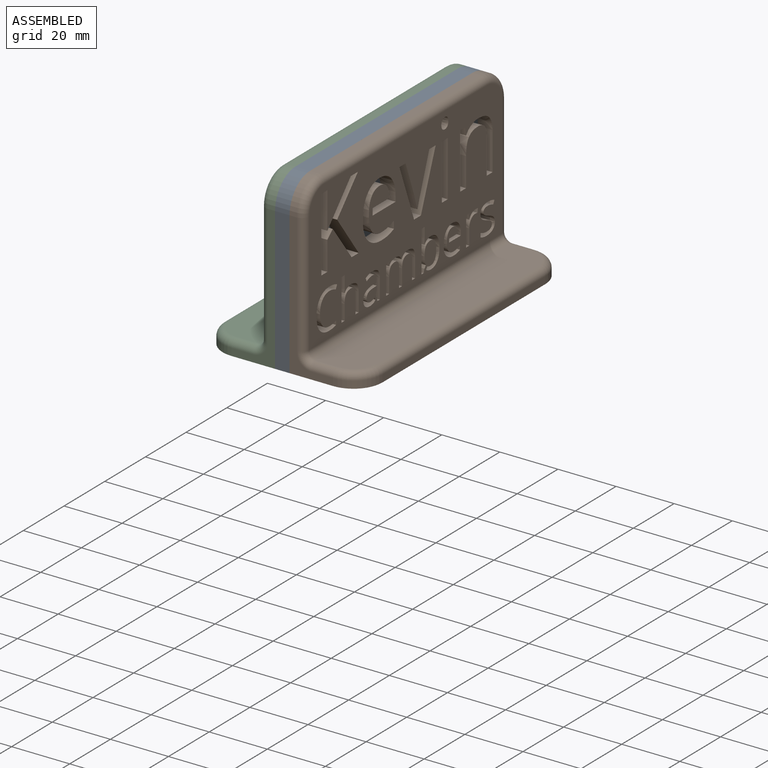
[diagram: assembled view]
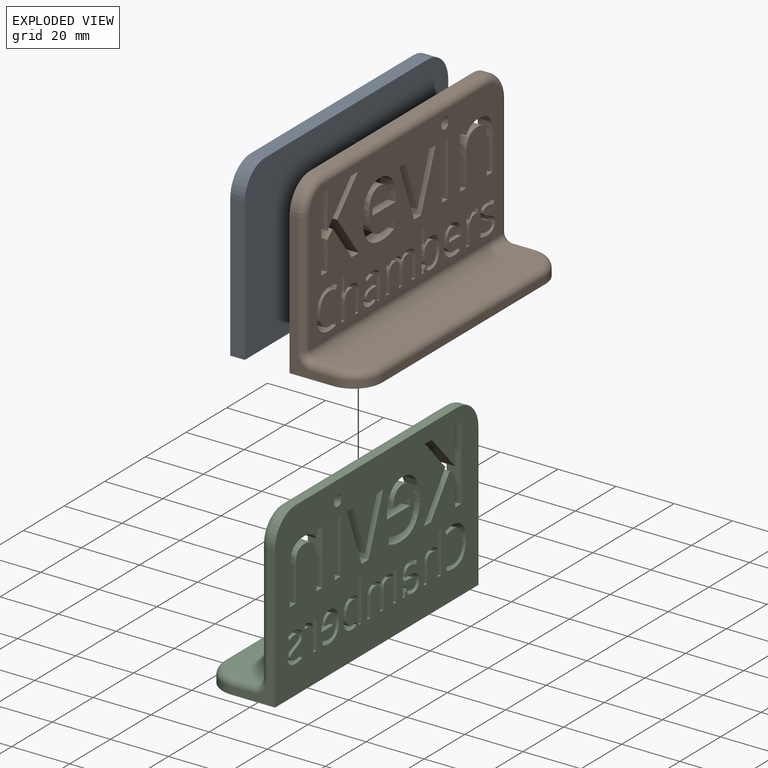
[diagram: exploded view]
GUIDED TOUR — MATED ASSEMBLY (Onshape document 4ed1271ee2d88fe41a46364c, AutoMate assembly 4ed1271ee2d88fe41a46364c_7fe667a77c4e3a3c3892e3f0_f2c3b8698e17d2e6d4dfa731_default)

This assembly has 3 components, labeled P0..P2 below (a component is one placed occurrence of a part; the same part can appear more than once), held together by 10 mates. A mate is a constraint between two components; its type names the relative motion it leaves free:
  PARALLEL — keeps the two listed directions parallel,
  PLANAR — leaves sliding in the plane through the listed point (normal = the listed direction) and rotation about that normal free.
Axis/direction vectors are unit vectors and 'through' points are millimeter coordinates, both in the assembly's world frame.

MATES
  1. PARALLEL "Parallel 2": P1 <-> P0, direction (0.000, 0.000, -1.000) through (-34.38, 50.54, -48.97) mm
  2. PLANAR "Planar 1": P0 <-> P1, direction (1.000, 0.000, 0.000) through (-46.70, 50.54, -19.61) mm
  3. PLANAR "Planar 5": P0 <-> P2, direction (0.000, 0.000, -1.000) through (-49.20, 0.54, -48.97) mm
  4. PARALLEL "Parallel 3": P2 <-> P0, direction (0.000, -1.000, 0.000) through (-54.50, 0.54, -29.68) mm
  5. PLANAR "Planar 4": P0 <-> P2, direction (0.000, -1.000, 0.000) through (-49.20, 0.54, -24.41) mm
  6. PARALLEL "Parallel 1": P0 <-> P1, direction (0.000, -1.000, 0.000) through (-49.20, 0.54, -24.41) mm
  7. PLANAR "Planar 3": P0 <-> P1, direction (0.000, -1.000, 0.000) through (-49.20, 0.54, -24.41) mm
  8. PLANAR "Planar 6": P1 <-> P0, direction (0.000, 0.000, -1.000) through (-39.20, 100.54, -48.97) mm
  9. PARALLEL "Parallel 4": P0 <-> P2, direction (0.000, 0.000, 1.000) through (-49.20, 50.54, 10.15) mm
  10. PLANAR "Planar 2": P2 <-> P0, direction (1.000, 0.000, 0.000) through (-51.70, 50.21, -20.01) mm

ASSEMBLY ORDER
  1. P1 — the base component [order verified]
  2. P2 [order verified]
  3. P0 [order verified]
Order-tag legend:
  [order verified] — this step's position reverses a verified removal order: the component was checked to insert without passing through the ones already placed.

Of the 3 components, 1 carries the full construction recipe — the FeatureScript program that regenerates the part's solid from scratch; the rest are supplied as boundary geometry only.
Each toured component is shown spotlighted twice — in the assembled view, then in the exploded view, where a leader line traces a displaced component back to its assembled socket (saturated green if recipe-attached, orange if geometry-only; every other component desaturated gray) — followed by its recipe or geometry summary and the mates that hold it.
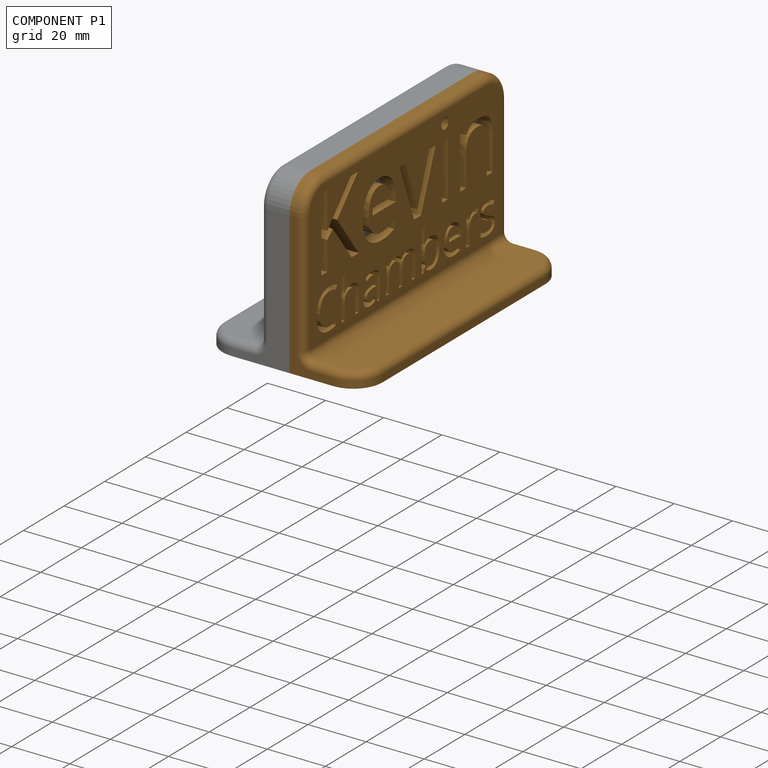
[diagram: component P1 — assembled]
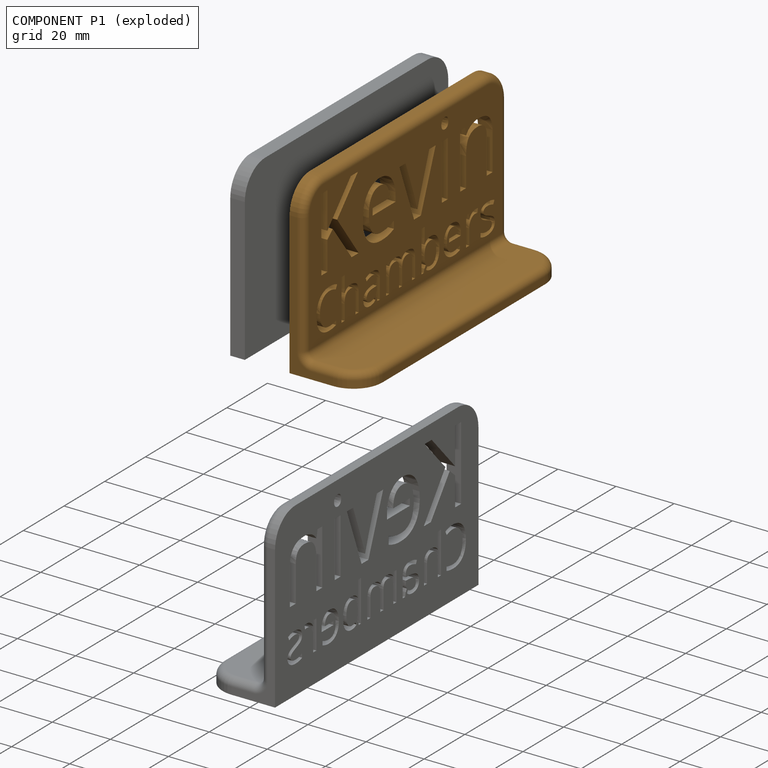
[diagram: component P1 — exploded]
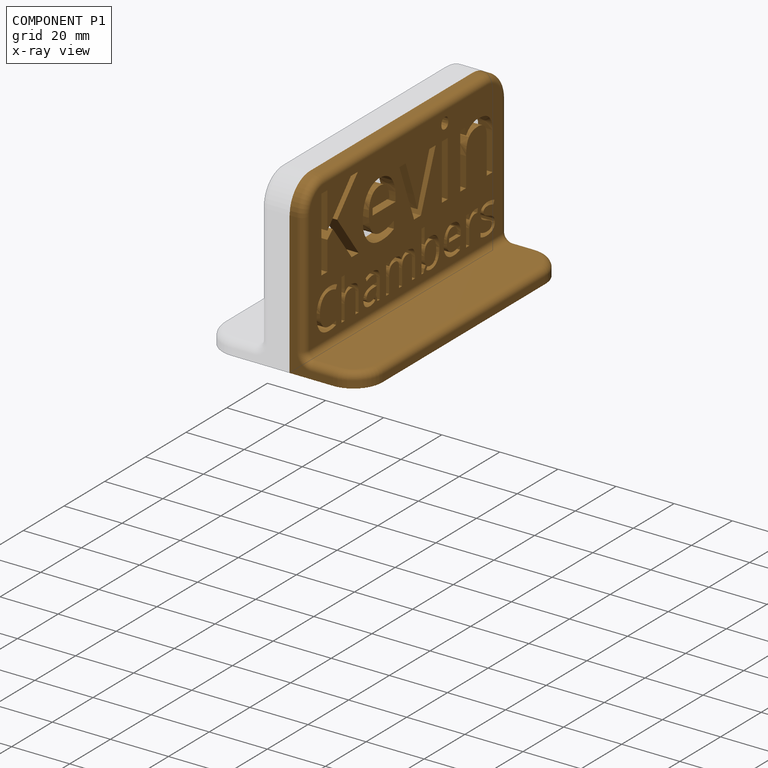
[diagram: component P1 — x-ray view]
COMPONENT P1 — geometry summary (no construction recipe available for this part):
  bounding box: 101.6 x 59.9 x 25.8 mm
  B-rep topology: 1 solid, 277 faces, 1626 edges
  volume: 34165 mm^3 (22% of its bounding box)
Held by: PARALLEL mate "Parallel 2" to P0; PLANAR mate "Planar 1" to P0; PARALLEL mate "Parallel 1" to P0; PLANAR mate "Planar 3" to P0; PLANAR mate "Planar 6" to P0.
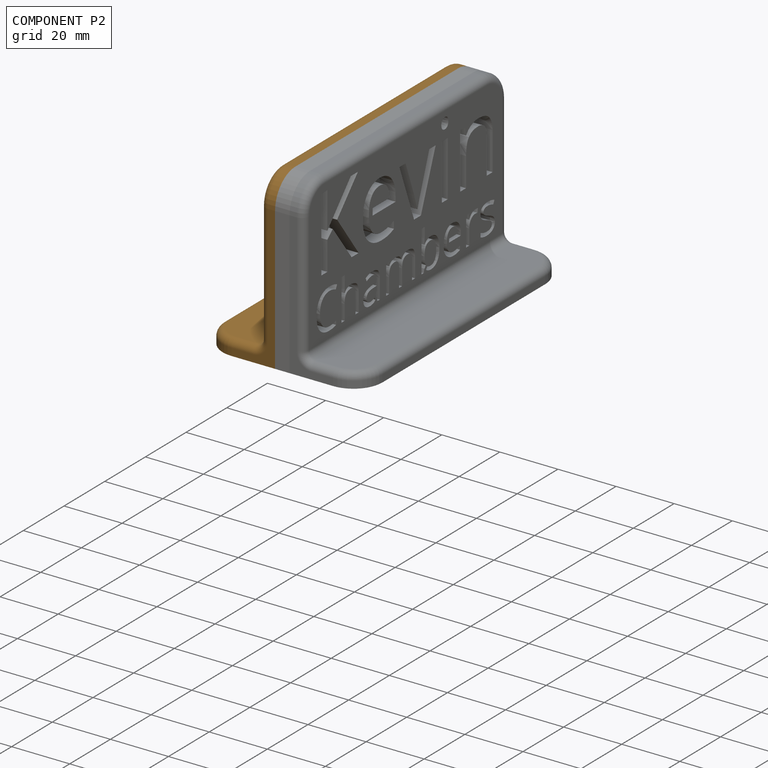
[diagram: component P2 — assembled]
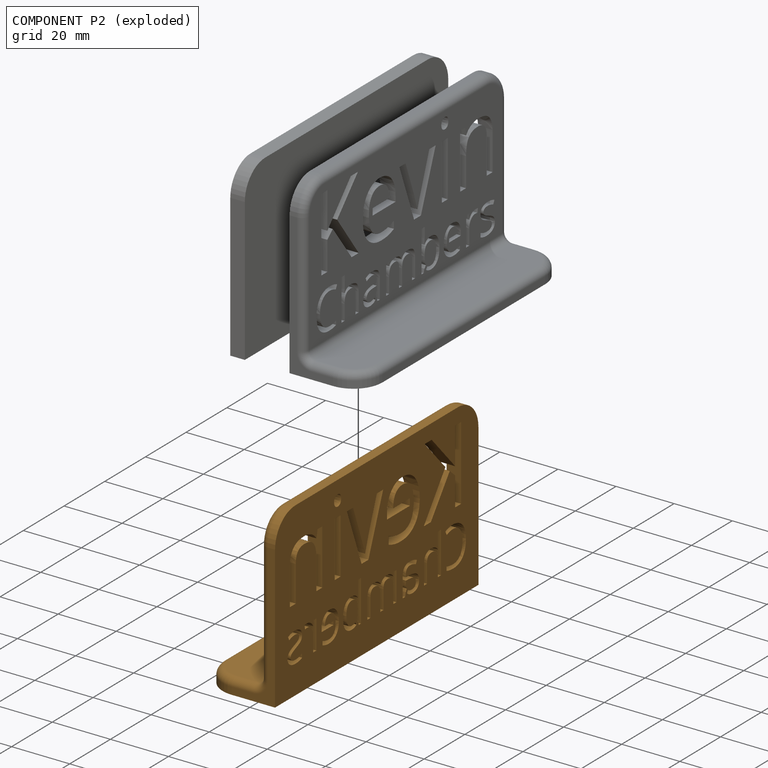
[diagram: component P2 — exploded]
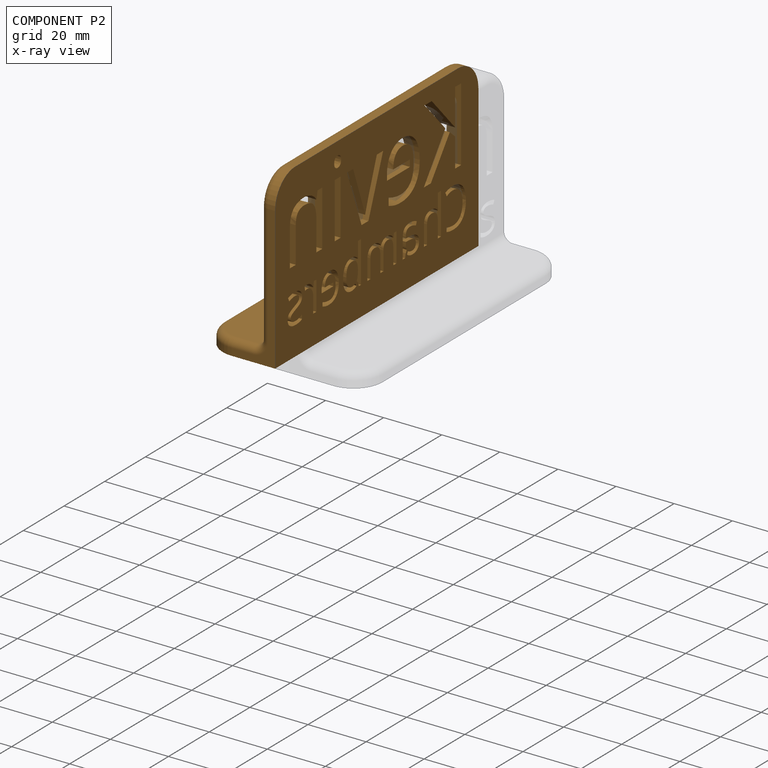
[diagram: component P2 — x-ray view]
COMPONENT P2 — geometry summary (no construction recipe available for this part):
  bounding box: 101.6 x 59.9 x 25.8 mm
  B-rep topology: 1 solid, 277 faces, 1626 edges
  volume: 34165 mm^3 (22% of its bounding box)
Held by: PLANAR mate "Planar 5" to P0; PARALLEL mate "Parallel 3" to P0; PLANAR mate "Planar 4" to P0; PARALLEL mate "Parallel 4" to P0; PLANAR mate "Planar 2" to P0.
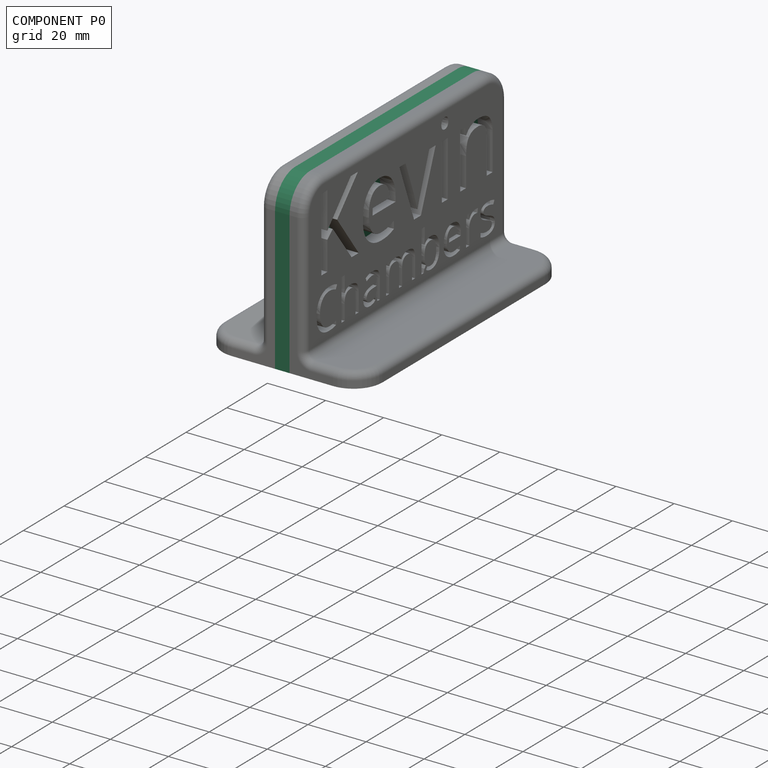
[diagram: component P0 — assembled]
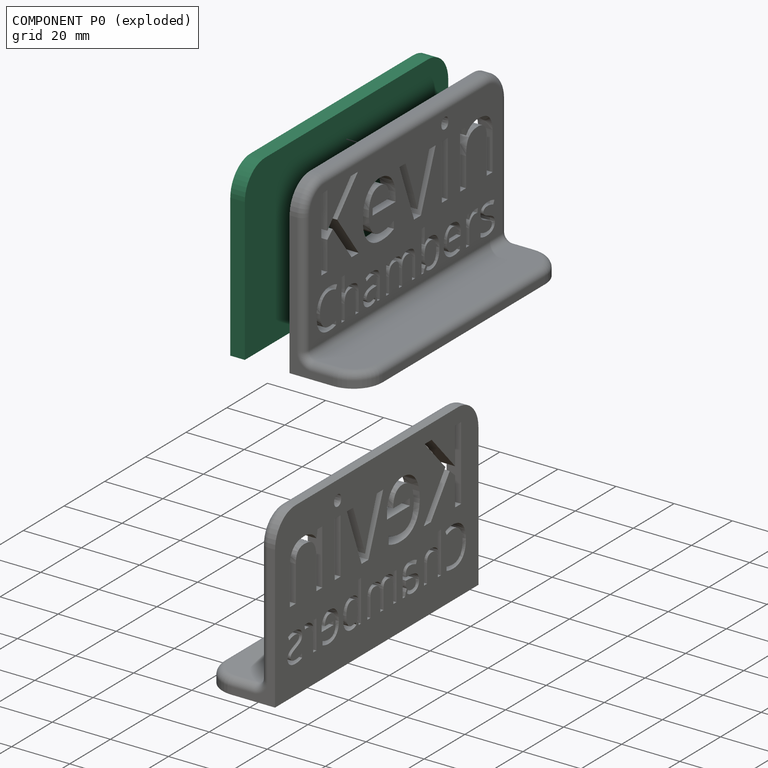
[diagram: component P0 — exploded]
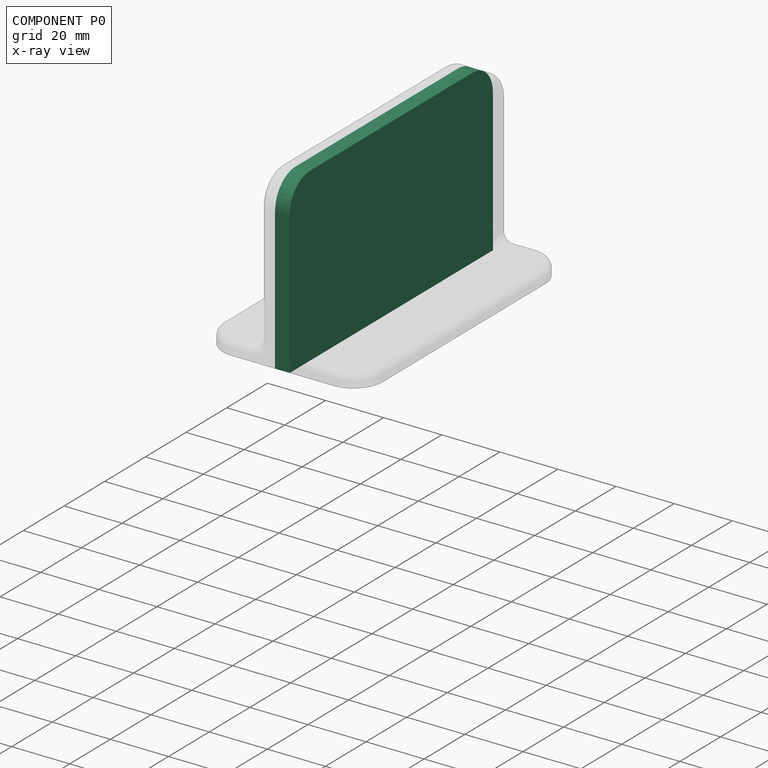
[diagram: component P0 — x-ray view]
COMPONENT P0 — recipe-attached (CADFS 00419818, mesh-verified: the recipe's output STEP matches this component's geometry to below the mesh-comparison resolution (tessellation chordal tolerance ~0.174 mm)).
Held by: PARALLEL mate "Parallel 2" to P1; PLANAR mate "Planar 1" to P1; PLANAR mate "Planar 5" to P2; PARALLEL mate "Parallel 3" to P2; PLANAR mate "Planar 4" to P2; PARALLEL mate "Parallel 1" to P1; PLANAR mate "Planar 3" to P1; PLANAR mate "Planar 6" to P1; PARALLEL mate "Parallel 4" to P2; PLANAR mate "Planar 2" to P2.
Construction recipe (FeatureScript — the CAD program that rebuilds this solid; sketch coordinates are in the units given by the * unit suffixes, e.g. mm):

FeatureScript 1511;
import(path : "onshape/std/geometry.fs", version : "1511.0");
import(path : "onshape/std/common.fs", version : "1511.0");
const mm = millimeter;
const VERTEX = EntityType.VERTEX;
const EDGE = EntityType.EDGE;
const FACE = EntityType.FACE;
const BODY = EntityType.BODY;
function v(x, y){return vector(x, y);}
function OD(order){return orderDisambiguation(order);}
function OSD(set){return originalSetDisambiguation(set);}
function TD(topology){return topologyDisambiguation(topology);}
function TDD(query){return trueDependencyDisambiguation(query);}
function sQuery(a, b, c) {return sketchEntityQuery(a, b, c);}

annotation { "Feature Type Name" : "Feature", "Feature Type Description" : "" }
export const myFeature = defineFeature(function(context is Context, id is Id, definition is map)
    precondition{}
    {
        {
            var Q0;
            Q0=qCreatedBy(makeId("Front.planeOp"),FACE);
            var sketch = newSketch(context, id + "F0", { "sketchPlane" : qUnion([Q0])});
            skLineSegment(sketch, "E0.bottom", {"start": v(0, 0) * mm, "end": v(100, 0) * mm});
            skLineSegment(sketch, "E0.top", {"start": v(0, 59.12) * mm, "end": v(100, 59.12) * mm});
            skLineSegment(sketch, "E0.left", {"start": v(0, 0) * mm, "end": v(0, 59.12) * mm});
            skLineSegment(sketch, "E0.right", {"start": v(100, 0) * mm, "end": v(100, 59.12) * mm});
            skSolve(sketch);
        }
        {
            var Q0;
            Q0 = qSketchRegion(id + "F0", true);
            extrude(context, id + "F1", {"entities" : qUnion([Q0]), "depth" : 5 * mm});
        }
        {
            var Q0;
            Q0=makeQuery(id+"F1.opExtrude","SWEPT_EDGE",EDGE,{"disambiguationData":[OSD([sQuery(id+"F0.wireOp",EDGE,"E0.top"),sQuery(id+"F0.wireOp",EDGE,"E0.right")])]});
            var Q1;
            Q1=makeQuery(id+"F1.opExtrude","SWEPT_EDGE",EDGE,{"disambiguationData":[OSD([sQuery(id+"F0.wireOp",EDGE,"E0.top"),sQuery(id+"F0.wireOp",EDGE,"E0.left")])]});
            fillet(context, id + "F2", {"entities" : qUnion([Q0, Q1]), "radius" : 10 * mm, "tangentPropagation" : true, "allowEdgeOverflow" : false});
        }
    });
PROVENANCE & LICENSES
Assembly (occurrences, transforms, mates, per-part STEP geometry): AutoMate dataset, Zenodo record 7776208, CC0.
Construction recipes: CADFS (HuggingFace VladPyatov/CADFS, CC-BY-4.0, layered over the ABC dataset), FeatureScript reconstruction programs keyed by ABC model id.
Join: ABC meta listings map ABC model id -> Onshape documentId; within a shared document, parts are matched by geometric signature (bounding-box dims + volume at 0.1% relative tolerance, exact B-rep face/solid counts).
Verification: 1 of this assembly's 3 components carries a recipe attachment, and every attachment is mesh-verified: the CADFS STEP and the AutoMate member STEP were compared as meshes in their shared local frame (symmetric sampled-point-to-mesh distance); worst across the 1 attachment: below the mesh-comparison resolution (tessellation chordal tolerance ~0.174 mm) on a 116 mm part.
Renders: orthographic iso camera (az 35 / el 25); the floor grid conveys scale (grid pitch printed in each image; no ruler). In the exploded view each component is displaced by its stored offset vector: the offsets alone carry the explosion direction (mate normal/axis signs are not orientation cues and do not encode it), and separation distances are assigned per mate-chain, not proportionally to assembly-order depth.
